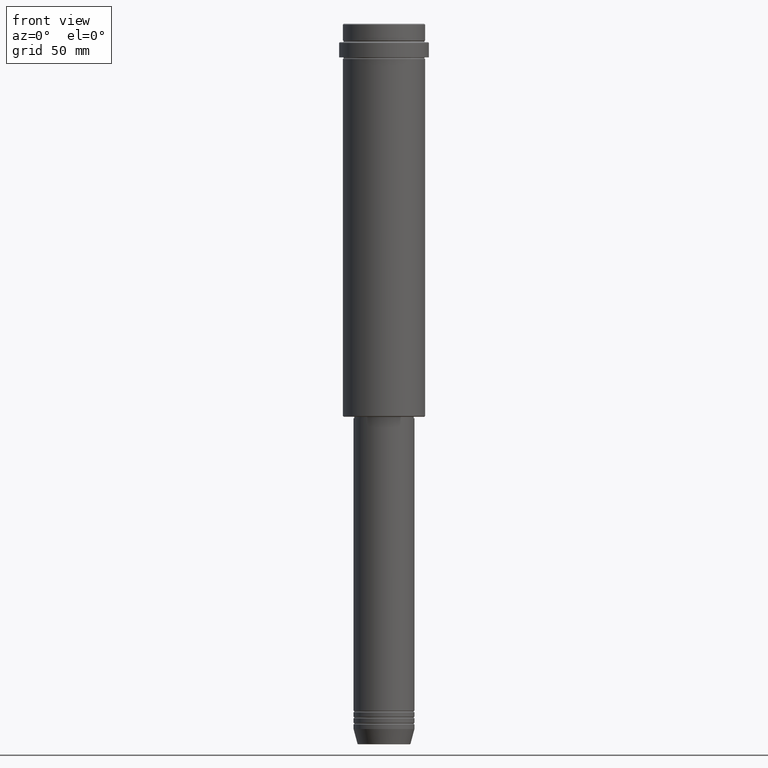
[diagram: clean part render]
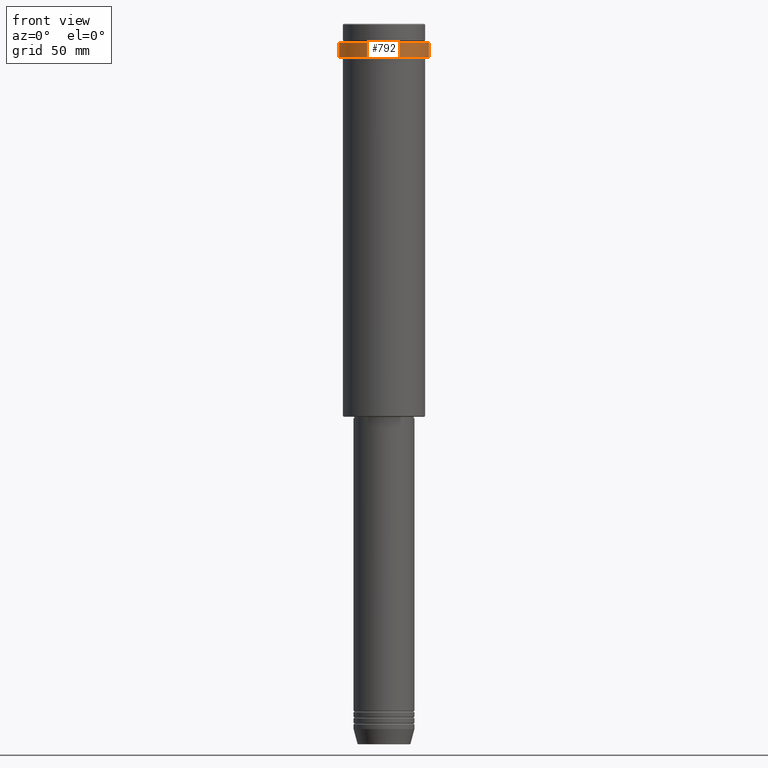
[diagram: same view with one face highlighted and labeled with its STEP entity id]
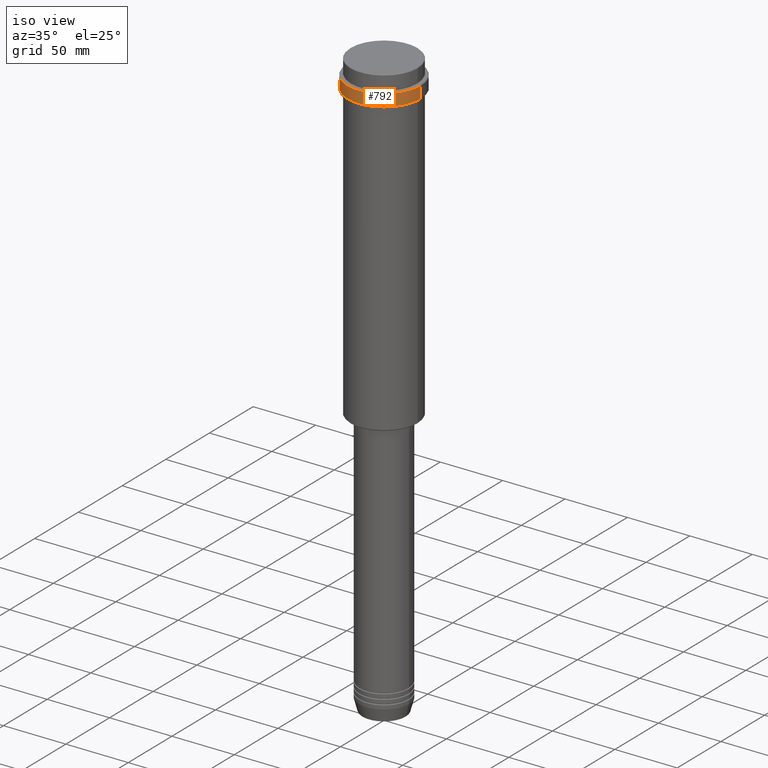
[diagram: same view with one face highlighted and labeled with its STEP entity id]
A machine part, front view. The second image highlights one B-rep face of the part: STEP entity #792.
A second angle (iso view) of the same face is appended — the face is thin or edge-on in the first view.
In plain terms, the highlighted cylindrical surface (partial cylindrical patch) has radius 29.5 mm, axis along (-0, -0, 1).
Its self-contained STEP definition (entity closure, byte-faithful):
#10 = VECTOR ( 'NONE', #331, 1000.000000000000000 ) ;
#88 = AXIS2_PLACEMENT_3D ( 'NONE', #1139, #1242, #468 ) ;
#97 = DIRECTION ( 'NONE',  ( -0.000000000000000000, -0.000000000000000000, 1.000000000000000000 ) ) ;
#124 = VECTOR ( 'NONE', #1390, 1000.000000000000000 ) ;
#132 = CARTESIAN_POINT ( 'NONE',  ( 29.50000000000000000, 0.000000000000000000, 0.000000000000000000 ) ) ;
#176 = CIRCLE ( 'NONE', #268, 29.49999999999999645 ) ;
#227 = EDGE_CURVE ( 'NONE', #800, #1040, #1059, .T. ) ;
#246 = DIRECTION ( 'NONE',  ( 1.000000000000000000, 0.000000000000000000, 0.000000000000000000 ) ) ;
#268 = AXIS2_PLACEMENT_3D ( 'NONE', #1014, #908, #246 ) ;
#300 = CARTESIAN_POINT ( 'NONE',  ( -29.50000000000000000, 3.612708057484691604E-15, 0.000000000000000000 ) ) ;
#319 = CARTESIAN_POINT ( 'NONE',  ( 29.50000000000000000, 0.000000000000000000, -12.50000000000006040 ) ) ;
#331 = DIRECTION ( 'NONE',  ( -0.000000000000000000, -0.000000000000000000, 1.000000000000000000 ) ) ;
#396 = CARTESIAN_POINT ( 'NONE',  ( 29.49999999999999645, 0.000000000000000000, -22.00000000000000711 ) ) ;
#397 = ORIENTED_EDGE ( 'NONE', *, *, #1071, .T. ) ;
#437 = EDGE_CURVE ( 'NONE', #1384, #888, #973, .T. ) ;
#449 = CARTESIAN_POINT ( 'NONE',  ( -29.49999999999999645, 3.612708057484690815E-15, -22.00000000000000711 ) ) ;
#468 = DIRECTION ( 'NONE',  ( 1.000000000000000000, 0.000000000000000000, 0.000000000000000000 ) ) ;
#549 = AXIS2_PLACEMENT_3D ( 'NONE', #1322, #97, #1191 ) ;
#647 = ORIENTED_EDGE ( 'NONE', *, *, #227, .F. ) ;
#659 = CARTESIAN_POINT ( 'NONE',  ( -29.50000000000000000, 3.612708057484691604E-15, -12.50000000000006040 ) ) ;
#736 = EDGE_LOOP ( 'NONE', ( #647, #397, #1062, #1029 ) ) ;
#792 = ADVANCED_FACE ( 'NONE', ( #1180 ), #870, .T. ) ;
#800 = VERTEX_POINT ( 'NONE', #449 ) ;
#870 = CYLINDRICAL_SURFACE ( 'NONE', #549, 29.50000000000000000 ) ;
#888 = VERTEX_POINT ( 'NONE', #319 ) ;
#908 = DIRECTION ( 'NONE',  ( -0.000000000000000000, -0.000000000000000000, 1.000000000000000000 ) ) ;
#973 = LINE ( 'NONE', #132, #10 ) ;
#1014 = CARTESIAN_POINT ( 'NONE',  ( 0.000000000000000000, 0.000000000000000000, -22.00000000000000711 ) ) ;
#1029 = ORIENTED_EDGE ( 'NONE', *, *, #1214, .T. ) ;
#1040 = VERTEX_POINT ( 'NONE', #659 ) ;
#1059 = LINE ( 'NONE', #300, #124 ) ;
#1062 = ORIENTED_EDGE ( 'NONE', *, *, #437, .T. ) ;
#1071 = EDGE_CURVE ( 'NONE', #800, #1384, #176, .T. ) ;
#1139 = CARTESIAN_POINT ( 'NONE',  ( 0.000000000000000000, 0.000000000000000000, -12.50000000000006040 ) ) ;
#1180 = FACE_OUTER_BOUND ( 'NONE', #736, .T. ) ;
#1191 = DIRECTION ( 'NONE',  ( 1.000000000000000000, 0.000000000000000000, 0.000000000000000000 ) ) ;
#1199 = CIRCLE ( 'NONE', #88, 29.50000000000000000 ) ;
#1214 = EDGE_CURVE ( 'NONE', #888, #1040, #1199, .T. ) ;
#1242 = DIRECTION ( 'NONE',  ( 0.000000000000000000, 0.000000000000000000, -1.000000000000000000 ) ) ;
#1322 = CARTESIAN_POINT ( 'NONE',  ( 0.000000000000000000, 0.000000000000000000, 0.000000000000000000 ) ) ;
#1384 = VERTEX_POINT ( 'NONE', #396 ) ;
#1390 = DIRECTION ( 'NONE',  ( -0.000000000000000000, -0.000000000000000000, 1.000000000000000000 ) ) ;